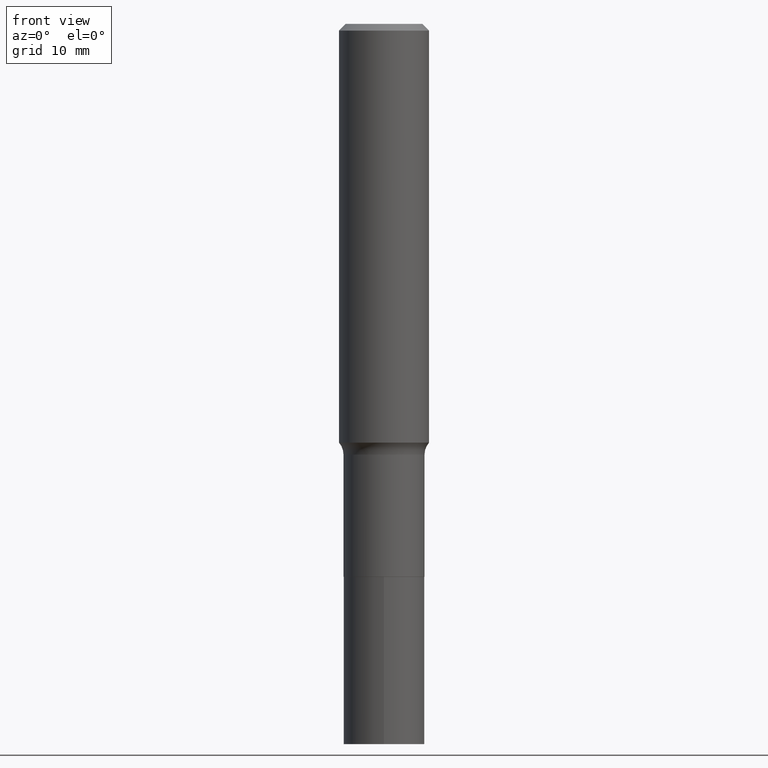
[diagram: clean part render]
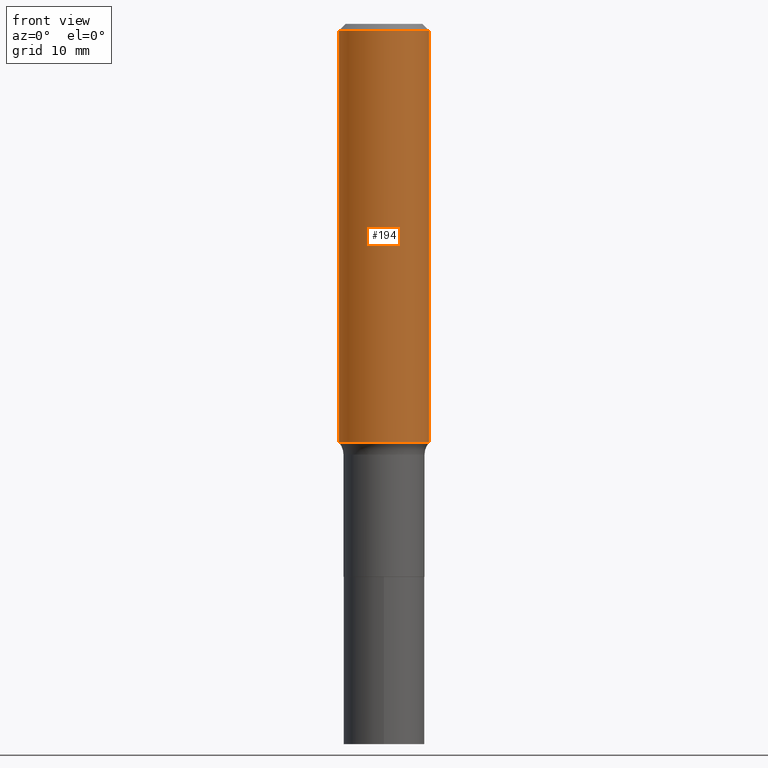
[diagram: same view with one face highlighted and labeled with its STEP entity id]
A machine part, front view. The second image highlights one B-rep face of the part: STEP entity #194.
In plain terms, the highlighted cylindrical surface (partial cylindrical patch) has radius 5 mm, axis along (-0, 0, 1).
Its self-contained STEP definition (entity closure, byte-faithful):
#3 = ORIENTED_EDGE ( 'NONE', *, *, #271, .T. ) ;
#15 = DIRECTION ( 'NONE',  ( 1.000000000000000000, -6.982962677686266711E-15, 0.000000000000000000 ) ) ;
#17 = EDGE_LOOP ( 'NONE', ( #402, #3, #323, #286 ) ) ;
#18 = CARTESIAN_POINT ( 'NONE',  ( -0.1968500000000000527, -1.849167880407326768E-15, -0.02952750000000019942 ) ) ;
#28 = DIRECTION ( 'NONE',  ( -2.445468806185136597E-29, 3.491481338843145583E-15, 1.000000000000000000 ) ) ;
#30 = EDGE_CURVE ( 'NONE', #216, #255, #163, .T. ) ;
#69 = CIRCLE ( 'NONE', #294, 0.1968500000000001915 ) ;
#71 = CARTESIAN_POINT ( 'NONE',  ( 7.220858017463210361E-31, -1.030947152326916856E-16, -0.02952750000000019942 ) ) ;
#90 = CARTESIAN_POINT ( 'NONE',  ( 0.1968500000000000527, -1.477690918335233688E-15, -0.02952750000000019942 ) ) ;
#98 = DIRECTION ( 'NONE',  ( -2.445468806185136597E-29, 3.491481338843145583E-15, 1.000000000000000000 ) ) ;
#121 = DIRECTION ( 'NONE',  ( 1.000000000000000000, -6.982962677686266711E-15, 4.876176775795935793E-29 ) ) ;
#148 = FACE_OUTER_BOUND ( 'NONE', #17, .T. ) ;
#161 = CARTESIAN_POINT ( 'NONE',  ( 0.1968500000000001915, -7.767243999372021400E-15, -1.830927098234927053 ) ) ;
#163 = LINE ( 'NONE', #265, #302 ) ;
#194 = ADVANCED_FACE ( 'NONE', ( #148 ), #437, .T. ) ;
#205 = DIRECTION ( 'NONE',  ( 1.000000000000000000, -6.982962677686266711E-15, 0.000000000000000000 ) ) ;
#211 = AXIS2_PLACEMENT_3D ( 'NONE', #257, #432, #121 ) ;
#216 = VERTEX_POINT ( 'NONE', #161 ) ;
#223 = VERTEX_POINT ( 'NONE', #18 ) ;
#255 = VERTEX_POINT ( 'NONE', #90 ) ;
#257 = CARTESIAN_POINT ( 'NONE',  ( 0.000000000000000000, 0.000000000000000000, 0.000000000000000000 ) ) ;
#265 = CARTESIAN_POINT ( 'NONE',  ( 0.1968500000000001082, -1.374596203102542397E-15, 9.598753983154305062E-30 ) ) ;
#271 = EDGE_CURVE ( 'NONE', #330, #216, #69, .T. ) ;
#275 = CARTESIAN_POINT ( 'NONE',  ( 4.477475105132583677E-29, -6.392647796269479003E-15, -1.830927098234927053 ) ) ;
#282 = CARTESIAN_POINT ( 'NONE',  ( -0.1968500000000001915, -4.993944420925722004E-15, -1.830927098234927053 ) ) ;
#286 = ORIENTED_EDGE ( 'NONE', *, *, #360, .F. ) ;
#294 = AXIS2_PLACEMENT_3D ( 'NONE', #275, #98, #15 ) ;
#302 = VECTOR ( 'NONE', #444, 39.37007874015748143 ) ;
#315 = LINE ( 'NONE', #358, #442 ) ;
#323 = ORIENTED_EDGE ( 'NONE', *, *, #30, .T. ) ;
#330 = VERTEX_POINT ( 'NONE', #282 ) ;
#334 = CIRCLE ( 'NONE', #374, 0.1968500000000000527 ) ;
#339 = EDGE_CURVE ( 'NONE', #330, #223, #315, .T. ) ;
#358 = CARTESIAN_POINT ( 'NONE',  ( -0.1968500000000001082, 1.398703375343757985E-15, -9.682923725166787881E-30 ) ) ;
#360 = EDGE_CURVE ( 'NONE', #223, #255, #334, .T. ) ;
#374 = AXIS2_PLACEMENT_3D ( 'NONE', #71, #28, #205 ) ;
#402 = ORIENTED_EDGE ( 'NONE', *, *, #339, .F. ) ;
#432 = DIRECTION ( 'NONE',  ( -2.445468806185136597E-29, 3.491481338843145583E-15, 1.000000000000000000 ) ) ;
#437 = CYLINDRICAL_SURFACE ( 'NONE', #211, 0.1968500000000001082 ) ;
#442 = VECTOR ( 'NONE', #454, 39.37007874015748143 ) ;
#444 = DIRECTION ( 'NONE',  ( -2.445468806185136877E-29, 3.491481338843145188E-15, 1.000000000000000000 ) ) ;
#454 = DIRECTION ( 'NONE',  ( -2.445468806185136877E-29, 3.491481338843145188E-15, 1.000000000000000000 ) ) ;